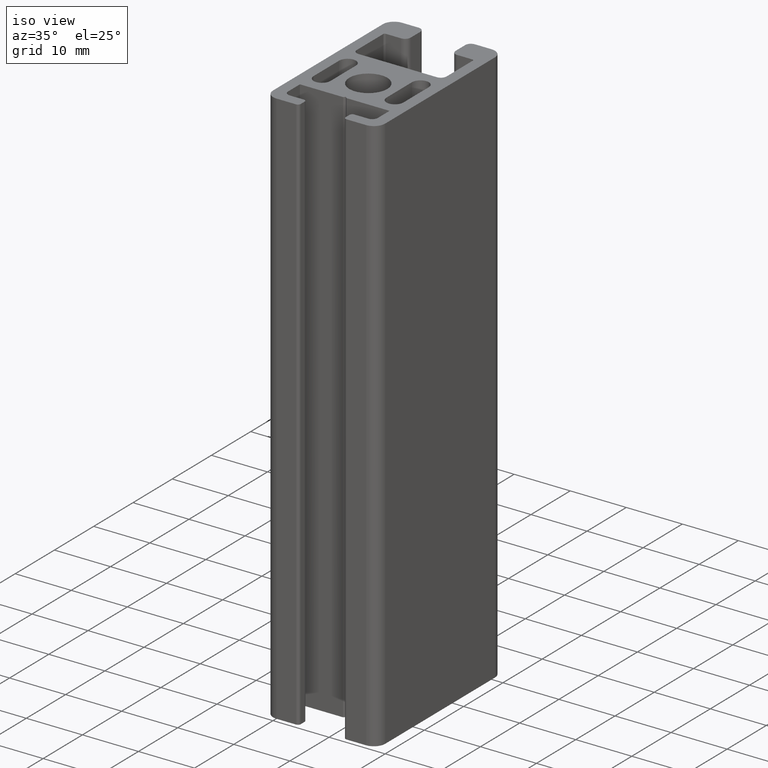
[diagram: clean part render]
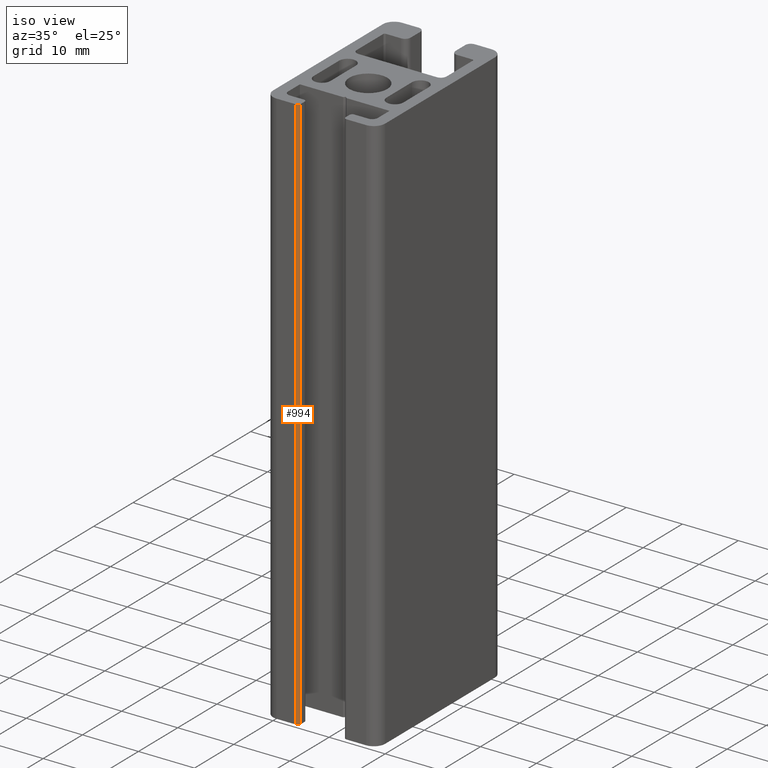
[diagram: same view with one face highlighted and labeled with its STEP entity id]
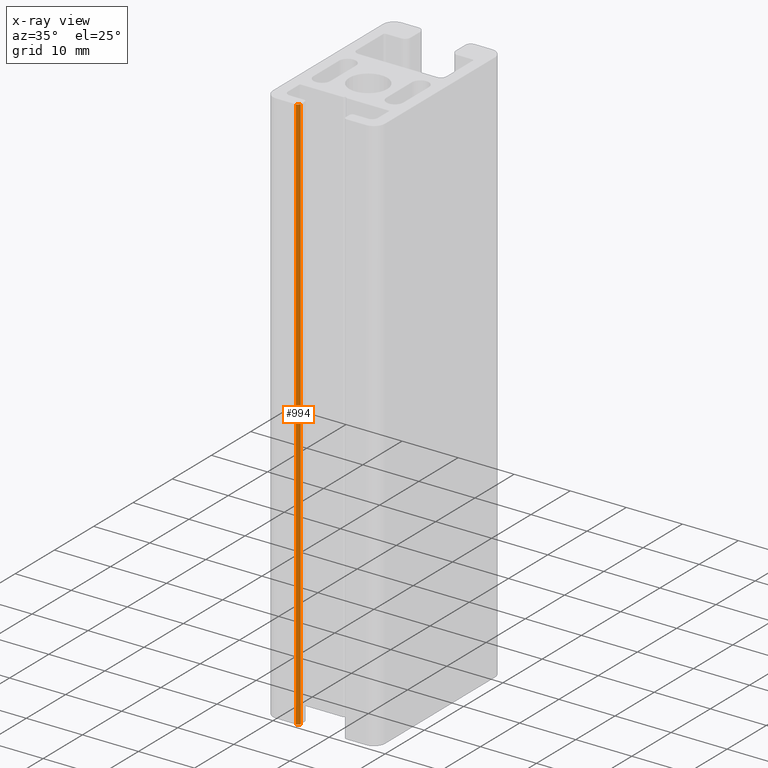
[diagram: x-ray of the same camera — body ghosted, the highlighted face saturated]
A machine part, iso view. The second image highlights one B-rep face of the part: STEP entity #994.
The next image is the same camera in x-ray: the body ghosted, the highlighted face saturated — about 0% of this face is hidden behind the body in this view.
In plain terms, the highlighted cylindrical surface (edge-blend (fillet) strip) has radius 0.5 mm, axis along (0, 0, 1).
Its self-contained STEP definition (entity closure, byte-faithful):
#61=FACE_OUTER_BOUND('',#114,.T.);
#114=EDGE_LOOP('',(#701,#702,#703,#704));
#180=LINE('',#1505,#283);
#181=LINE('',#1508,#284);
#283=VECTOR('',#1204,100.);
#284=VECTOR('',#1207,100.);
#380=CIRCLE('',#1061,0.5);
#381=CIRCLE('',#1062,0.5);
#436=VERTEX_POINT('',#1501);
#437=VERTEX_POINT('',#1502);
#438=VERTEX_POINT('',#1504);
#439=VERTEX_POINT('',#1506);
#544=EDGE_CURVE('',#436,#437,#380,.T.);
#545=EDGE_CURVE('',#436,#438,#180,.T.);
#546=EDGE_CURVE('',#439,#438,#381,.T.);
#547=EDGE_CURVE('',#439,#437,#181,.T.);
#701=ORIENTED_EDGE('',*,*,#544,.F.);
#702=ORIENTED_EDGE('',*,*,#545,.T.);
#703=ORIENTED_EDGE('',*,*,#546,.F.);
#704=ORIENTED_EDGE('',*,*,#547,.T.);
#967=CYLINDRICAL_SURFACE('',#1060,0.5);
#994=ADVANCED_FACE('',(#61),#967,.T.);
#1060=AXIS2_PLACEMENT_3D('',#1500,#1200,#1201);
#1061=AXIS2_PLACEMENT_3D('',#1503,#1202,#1203);
#1062=AXIS2_PLACEMENT_3D('',#1507,#1205,#1206);
#1200=DIRECTION('center_axis',(0.,0.,1.));
#1201=DIRECTION('ref_axis',(-1.11022302462512E-14,1.,0.));
#1202=DIRECTION('center_axis',(0.,0.,1.));
#1203=DIRECTION('ref_axis',(-1.11022302462512E-14,1.,0.));
#1204=DIRECTION('',(0.,0.,-1.));
#1205=DIRECTION('center_axis',(0.,0.,-1.));
#1206=DIRECTION('ref_axis',(-1.11022302462512E-14,1.,0.));
#1207=DIRECTION('',(0.,0.,1.));
#1500=CARTESIAN_POINT('Origin',(-4.5,-11.5,0.));
#1501=CARTESIAN_POINT('',(-4.49999999999999,-12.,100.));
#1502=CARTESIAN_POINT('',(-4.,-11.5,100.));
#1503=CARTESIAN_POINT('Origin',(-4.5,-11.5,100.));
#1504=CARTESIAN_POINT('',(-4.49999999999999,-12.,0.));
#1505=CARTESIAN_POINT('',(-4.5,-12.,0.));
#1506=CARTESIAN_POINT('',(-4.,-11.5,0.));
#1507=CARTESIAN_POINT('Origin',(-4.5,-11.5,0.));
#1508=CARTESIAN_POINT('',(-4.,-11.5,0.));